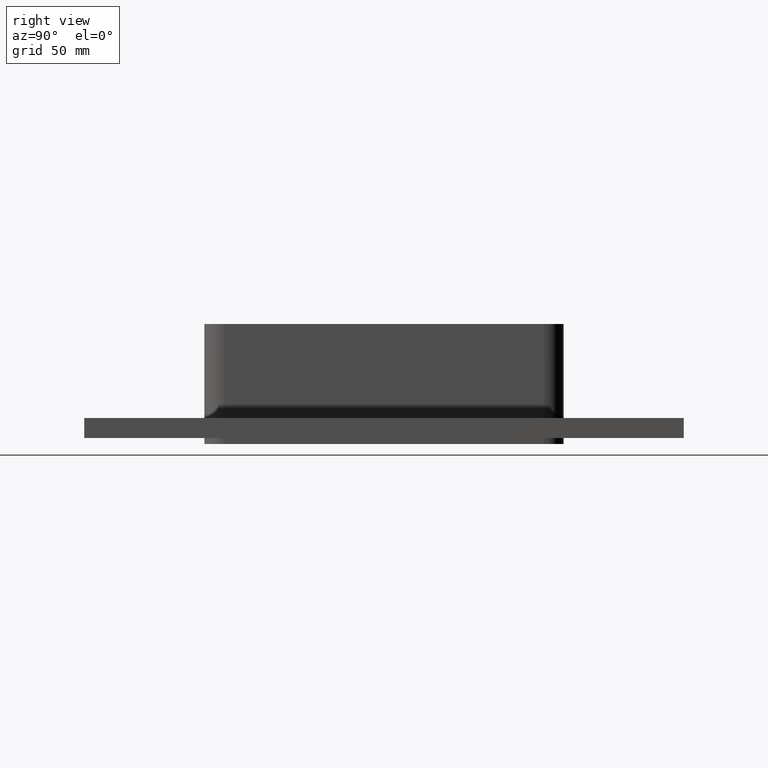
[diagram: clean part render]
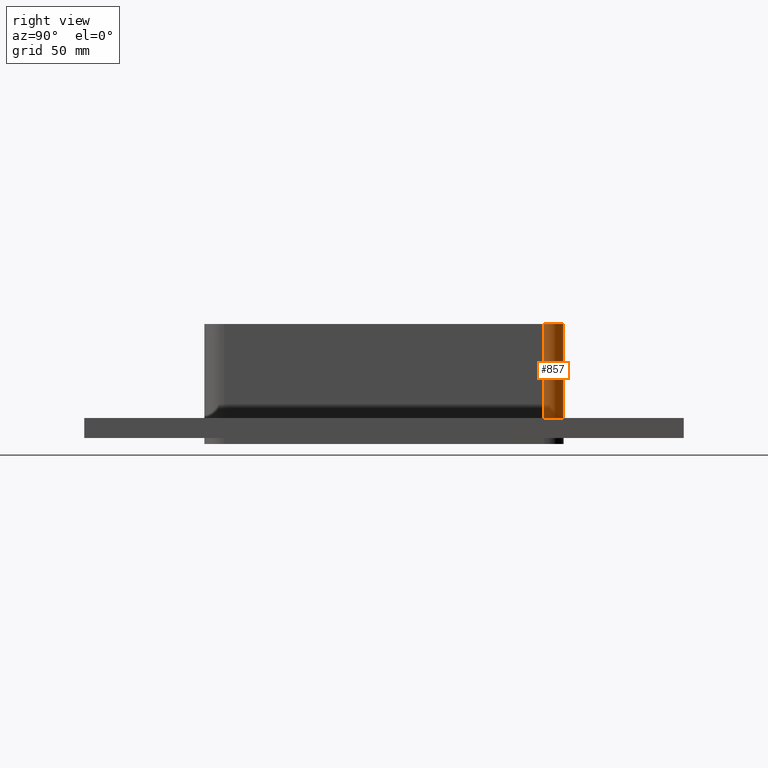
[diagram: same view with one face highlighted and labeled with its STEP entity id]
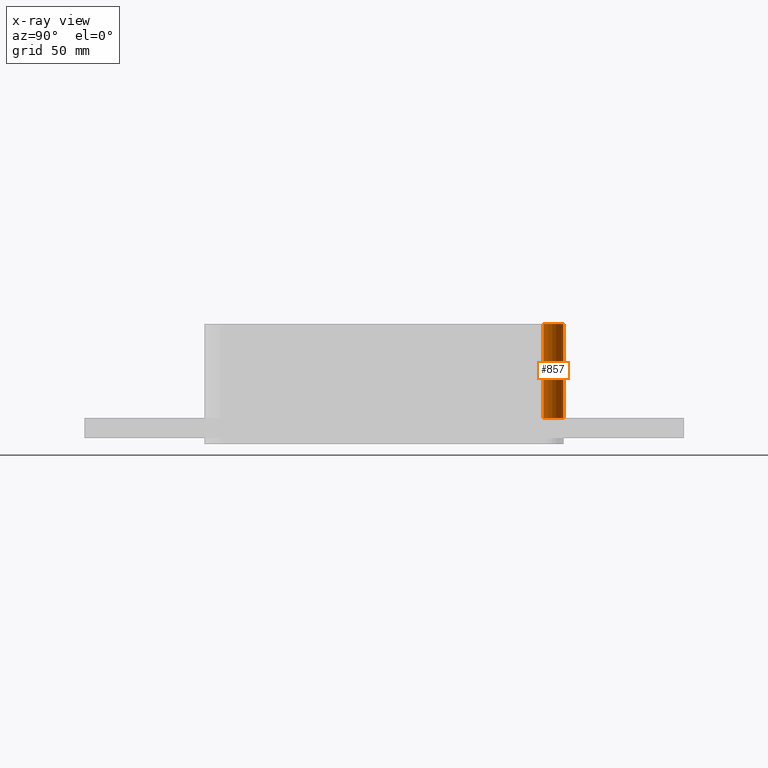
[diagram: x-ray of the same camera — body ghosted, the highlighted face saturated]
A machine part, right view. The second image highlights one B-rep face of the part: STEP entity #857.
The next image is the same camera in x-ray: the body ghosted, the highlighted face saturated — about 0% of this face is hidden behind the body in this view.
In plain terms, the highlighted cylindrical surface (edge-blend (fillet) strip) has radius 10 mm, axis along (0, 0, 1).
Its self-contained STEP definition (entity closure, byte-faithful):
#513=CARTESIAN_POINT('',(40.249999999999986,79.750000000000014,-17.0));
#514=VERTEX_POINT('',#513);
#515=CARTESIAN_POINT('',(30.249999999999986,89.750000000000014,-17.0));
#516=VERTEX_POINT('',#515);
#517=CARTESIAN_POINT('',(30.249999999999915,79.750000000000128,-16.999999999999996));
#518=DIRECTION('',(0.0,0.0,1.0));
#519=DIRECTION('',(0.707106781186547,0.707106781186548,0.0));
#520=AXIS2_PLACEMENT_3D('',#517,#518,#519);
#521=CIRCLE('',#520,10.0);
#522=EDGE_CURVE('',#514,#516,#521,.T.);
#790=CARTESIAN_POINT('',(40.249999999999915,79.750000000000114,30.0));
#791=VERTEX_POINT('',#790);
#792=CARTESIAN_POINT('',(40.249999999999915,79.750000000000128,30.0));
#793=DIRECTION('',(0.0,0.0,-1.0));
#794=VECTOR('',#793,47.0);
#795=LINE('',#792,#794);
#796=EDGE_CURVE('',#791,#514,#795,.T.);
#833=CARTESIAN_POINT('',(30.249999999999915,79.750000000000128,0.0));
#834=DIRECTION('',(0.0,0.0,1.0));
#835=DIRECTION('',(0.707106781186547,0.707106781186548,0.0));
#836=AXIS2_PLACEMENT_3D('',#833,#834,#835);
#837=CYLINDRICAL_SURFACE('',#836,10.0);
#838=ORIENTED_EDGE('',*,*,#522,.T.);
#839=CARTESIAN_POINT('',(30.249999999999915,89.750000000000142,30.0));
#840=VERTEX_POINT('',#839);
#841=CARTESIAN_POINT('',(30.249999999999915,89.750000000000142,-17.0));
#842=DIRECTION('',(0.0,0.0,1.0));
#843=VECTOR('',#842,47.0);
#844=LINE('',#841,#843);
#845=EDGE_CURVE('',#516,#840,#844,.T.);
#846=ORIENTED_EDGE('',*,*,#845,.T.);
#847=CARTESIAN_POINT('',(30.249999999999915,79.750000000000128,30.0));
#848=DIRECTION('',(0.0,0.0,-1.0));
#849=DIRECTION('',(0.707106781186547,0.707106781186548,0.0));
#850=AXIS2_PLACEMENT_3D('',#847,#848,#849);
#851=CIRCLE('',#850,10.0);
#852=EDGE_CURVE('',#840,#791,#851,.T.);
#853=ORIENTED_EDGE('',*,*,#852,.T.);
#854=ORIENTED_EDGE('',*,*,#796,.T.);
#855=EDGE_LOOP('',(#838,#846,#853,#854));
#856=FACE_OUTER_BOUND('',#855,.T.);
#857=ADVANCED_FACE('',(#856),#837,.T.);